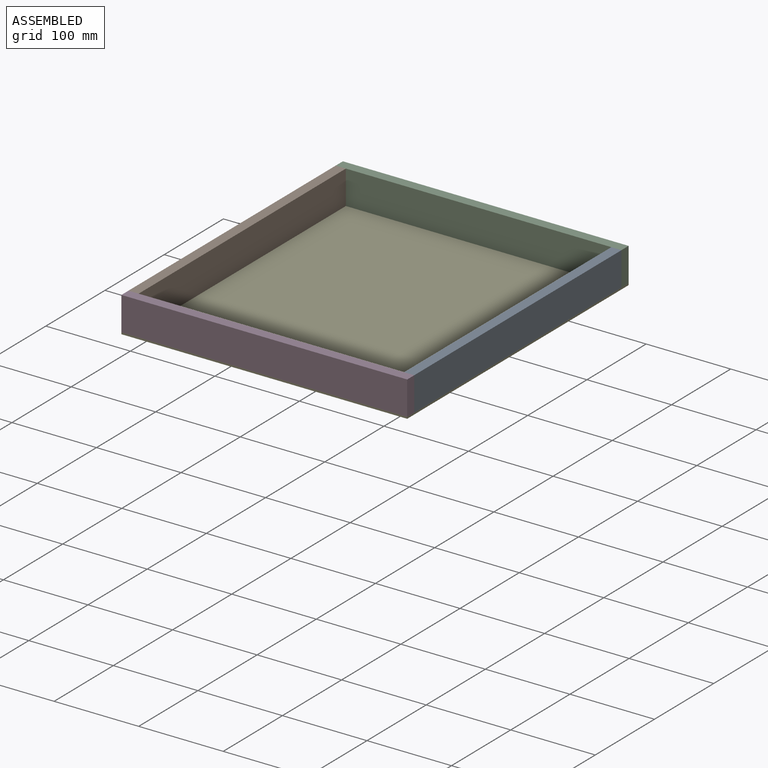
[diagram: assembled view]
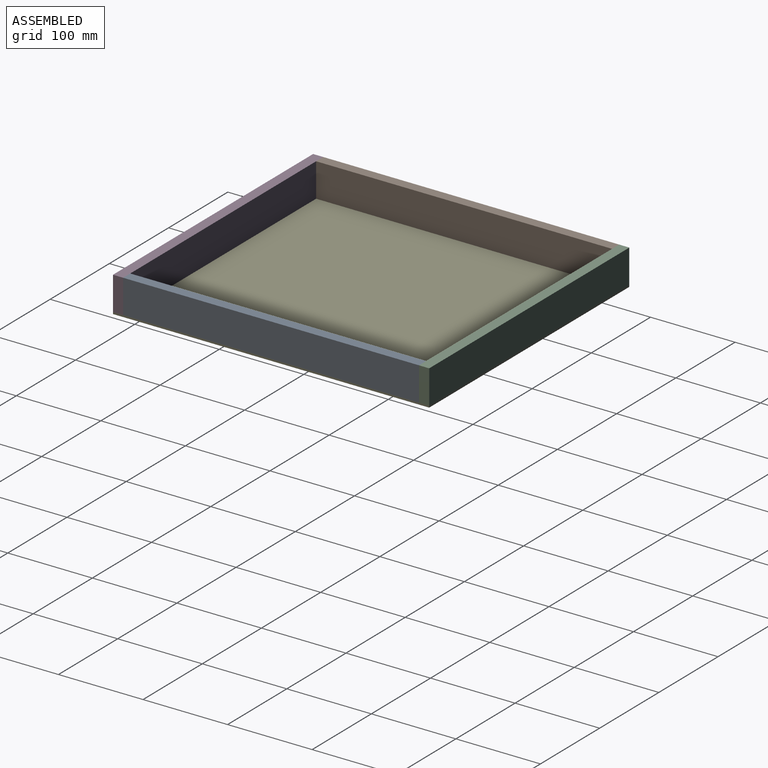
[diagram: assembled view, second angle]
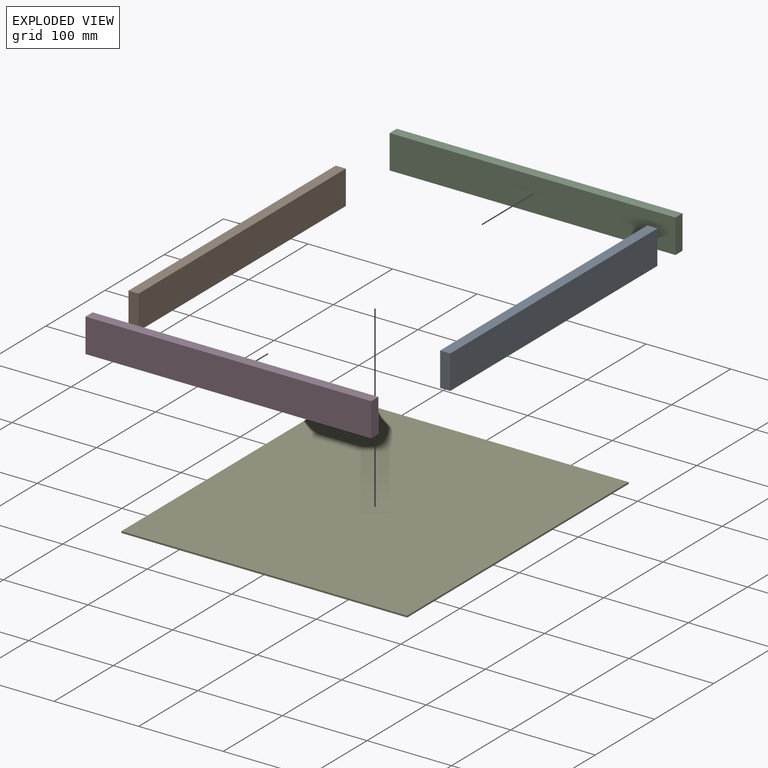
[diagram: exploded view]
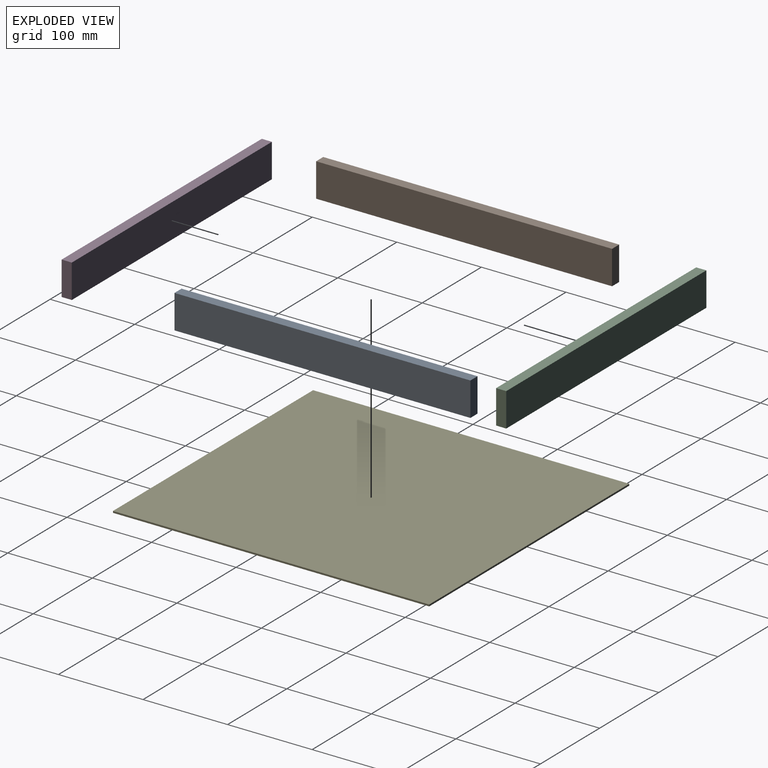
[diagram: exploded view, second angle]
ASSEMBLY  parts=5 mates=4
PART A: 6 faces, bbox 40x350x12 mm
  f0: plane 40x12mm, normal (0,1,0), area 480mm2, adj f1,f3,f4,f5
  f1: plane 350x12mm, normal (-1,0,0), area 4200mm2, adj f0,f2,f4,f5
  f2: plane 40x12mm, normal (0,-1,0), area 480mm2, adj f1,f3,f4,f5
  f3: plane 350x12mm, normal (1,0,0), area 4200mm2, adj f0,f2,f4,f5
  f4: plane 350x40mm, normal (0,0,1), area 14000mm2, adj f0,f1,f2,f3
  f5: plane 350x40mm, normal (0,0,-1), area 14000mm2, adj f0,f1,f2,f3
PART B: same geometry as A
PART C: 6 faces, bbox 40x338x12 mm
  f0: plane 40x12mm, normal (0,1,0), area 480mm2, adj f1,f3,f4,f5
  f1: plane 338x12mm, normal (-1,0,0), area 4056mm2, adj f0,f2,f4,f5
  f2: plane 40x12mm, normal (0,-1,0), area 480mm2, adj f1,f3,f4,f5
  f3: plane 338x12mm, normal (1,0,0), area 4056mm2, adj f0,f2,f4,f5
  f4: plane 338x40mm, normal (0,0,1), area 13520mm2, adj f0,f1,f2,f3
  f5: plane 338x40mm, normal (0,0,-1), area 13520mm2, adj f0,f1,f2,f3
PART D: same geometry as C
PART E: 6 faces, bbox 374x338x2 mm
  f0: plane 374x2mm, normal (0,1,0), area 748mm2, adj f1,f3,f4,f5
  f1: plane 338x2mm, normal (-1,0,0), area 676mm2, adj f0,f2,f4,f5
  f2: plane 374x2mm, normal (0,-1,0), area 748mm2, adj f1,f3,f4,f5
  f3: plane 338x2mm, normal (1,0,0), area 676mm2, adj f0,f2,f4,f5
  f4: plane 374x338mm, normal (0,0,1), area 126412mm2, adj f0,f1,f2,f3
  f5: plane 374x338mm, normal (0,0,-1), area 126412mm2, adj f0,f1,f2,f3
PLACE A rot(axis=(0,1,0),90deg) t=(67.48,-196.05,540.95)mm
PLACE B rot(axis=(0,1,0),90deg) t=(-258.52,-196.05,540.95)mm fixed
PLACE C rot(axis=(0.58,0.58,-0.58),120deg) t=(-249.38,114.08,-131.86)mm
PLACE D rot(axis=(-0.58,0.58,0.58),120deg) t=(70.34,-259.92,-131.86)mm
PLACE E rot(axis=(0,0,1),90deg) t=(-384.15,-171.44,95.53)mm
MATE fastened A.f2 <-> D.f4  axis (0,-1,0) through (79.48,-247.92,117.53)mm
MATE fastened D.f4 <-> B.f2  axis (0,1,0) through (-258.52,-247.92,117.53)mm
MATE fastened E.f4 <-> D.f3  axis (0,0,1) through (79.48,-259.92,97.53)mm
MATE fastened C.f4 <-> B.f0  axis (0,-1,0) through (-258.52,102.08,117.53)mm
